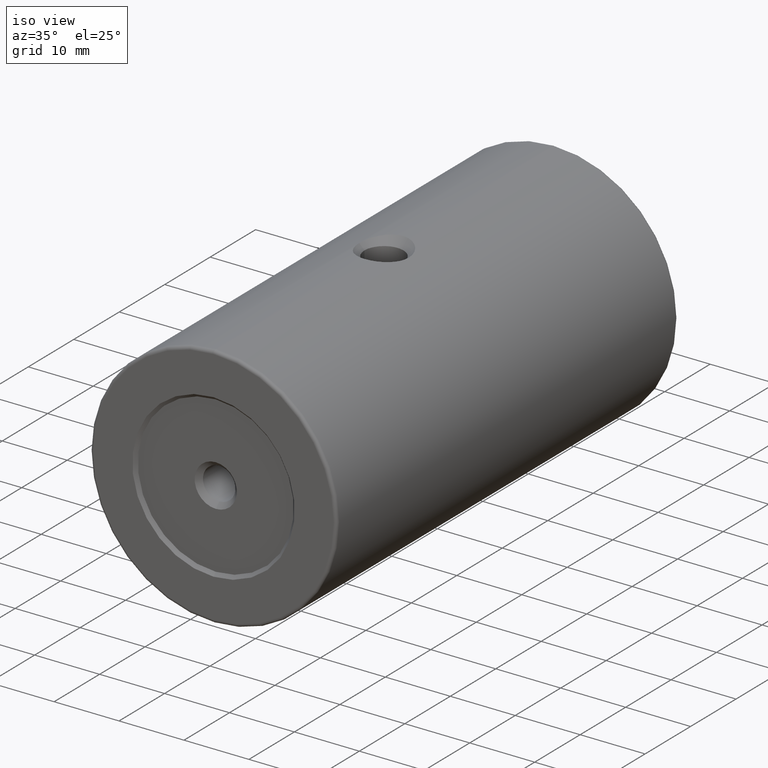
[diagram: clean part render]
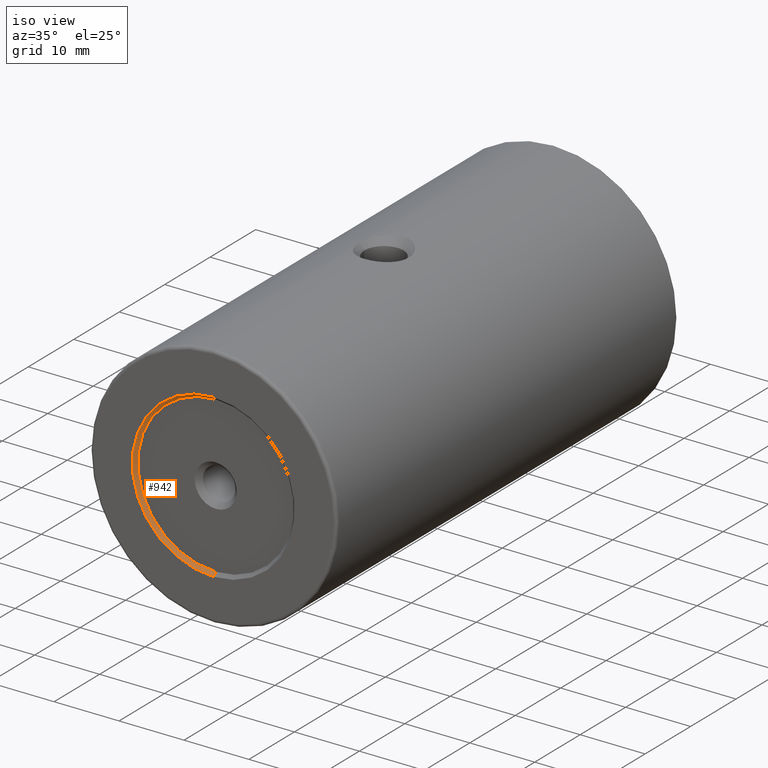
[diagram: same view with one face highlighted and labeled with its STEP entity id]
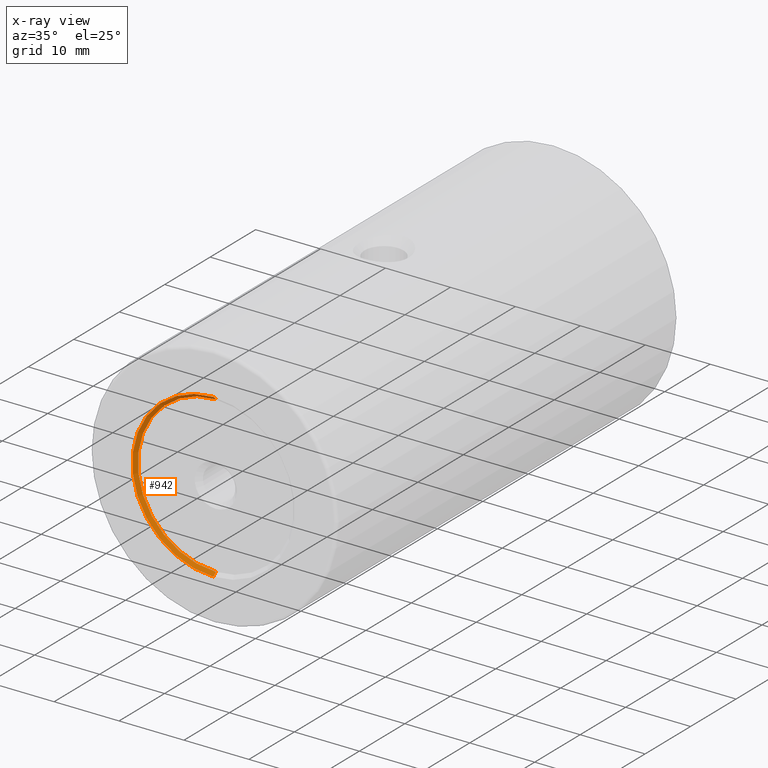
[diagram: x-ray of the same camera — body ghosted, the highlighted face saturated]
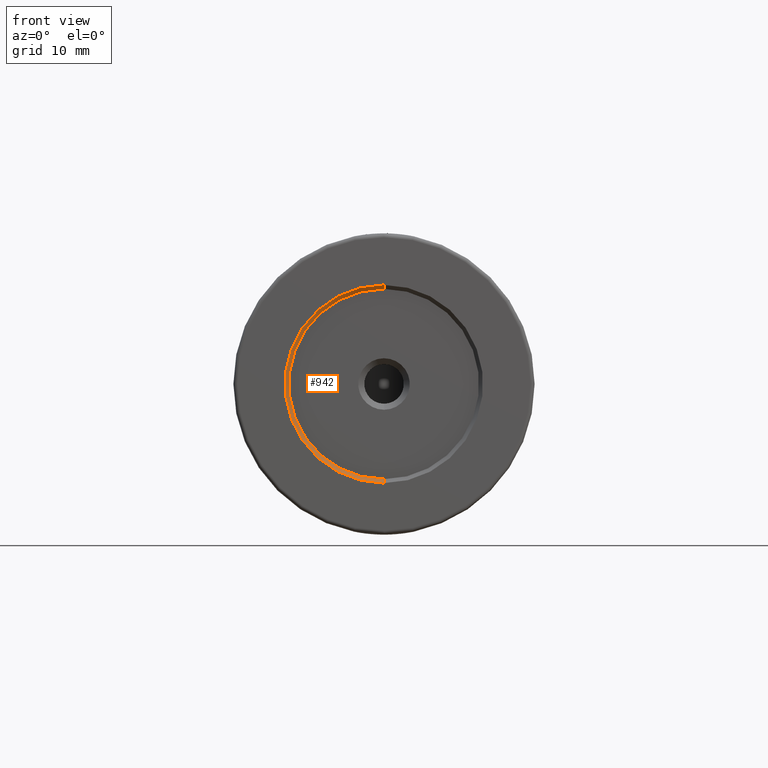
[diagram: same view with one face highlighted and labeled with its STEP entity id]
A machine part, iso view. The second image highlights one B-rep face of the part: STEP entity #942.
The next image is the same camera in x-ray: the body ghosted, the highlighted face saturated — about 0% of this face is hidden behind the body in this view.
A second angle (front view) of the same face is appended — the face is thin or edge-on in the first view.
In plain terms, the highlighted conical surface has half-angle 45 deg.
Its self-contained STEP definition (entity closure, byte-faithful):
#74 = CARTESIAN_POINT ( 'NONE',  ( -85.22679983354142053, -41.76133999167427646, 412.5000000000000568 ) ) ;
#88 = CARTESIAN_POINT ( 'NONE',  ( -85.22679983354142053, -41.26133999167427646, 388.0000000000000000 ) ) ;
#98 = DIRECTION ( 'NONE',  ( -0.0000000000000000000, -1.000000000000000000, -0.0000000000000000000 ) ) ;
#100 = EDGE_LOOP ( 'NONE', ( #394, #592, #498, #458 ) ) ;
#134 = EDGE_CURVE ( 'NONE', #981, #694, #994, .T. ) ;
#167 = CIRCLE ( 'NONE', #662, 12.50000000000001066 ) ;
#178 = VERTEX_POINT ( 'NONE', #605 ) ;
#202 = CONICAL_SURFACE ( 'NONE', #550, 12.50000000000001066, 0.7853981633974500554 ) ;
#261 = VECTOR ( 'NONE', #283, 1000.000000000000000 ) ;
#272 = DIRECTION ( 'NONE',  ( 0.0000000000000000000, 0.0000000000000000000, 1.000000000000000000 ) ) ;
#283 = DIRECTION ( 'NONE',  ( 0.0000000000000000000, -0.7071067811865463515, 0.7071067811865487940 ) ) ;
#299 = CARTESIAN_POINT ( 'NONE',  ( -85.22679983354142053, -41.76133999167427646, 412.5000000000000568 ) ) ;
#305 = CARTESIAN_POINT ( 'NONE',  ( -85.22679983354142053, -41.76133999167427646, 387.5000000000000000 ) ) ;
#368 = DIRECTION ( 'NONE',  ( -8.659560562354948882E-17, -0.7071067811865463515, -0.7071067811865487940 ) ) ;
#388 = AXIS2_PLACEMENT_3D ( 'NONE', #546, #541, #959 ) ;
#394 = ORIENTED_EDGE ( 'NONE', *, *, #134, .F. ) ;
#408 = FACE_OUTER_BOUND ( 'NONE', #100, .T. ) ;
#458 = ORIENTED_EDGE ( 'NONE', *, *, #753, .F. ) ;
#498 = ORIENTED_EDGE ( 'NONE', *, *, #601, .T. ) ;
#522 = LINE ( 'NONE', #299, #261 ) ;
#541 = DIRECTION ( 'NONE',  ( -0.0000000000000000000, 1.000000000000000000, -0.0000000000000000000 ) ) ;
#545 = DIRECTION ( 'NONE',  ( 0.0000000000000000000, 0.0000000000000000000, 1.000000000000000000 ) ) ;
#546 = CARTESIAN_POINT ( 'NONE',  ( -85.22679983354142053, -41.26133999167427646, 400.0000000000000000 ) ) ;
#550 = AXIS2_PLACEMENT_3D ( 'NONE', #963, #98, #272 ) ;
#592 = ORIENTED_EDGE ( 'NONE', *, *, #690, .T. ) ;
#601 = EDGE_CURVE ( 'NONE', #178, #785, #522, .T. ) ;
#605 = CARTESIAN_POINT ( 'NONE',  ( -85.22679983354142053, -41.26133999167427646, 412.0000000000000568 ) ) ;
#636 = CARTESIAN_POINT ( 'NONE',  ( -85.22679983354142053, -41.76133999167427646, 400.0000000000000000 ) ) ;
#662 = AXIS2_PLACEMENT_3D ( 'NONE', #636, #947, #545 ) ;
#690 = EDGE_CURVE ( 'NONE', #981, #178, #742, .T. ) ;
#694 = VERTEX_POINT ( 'NONE', #767 ) ;
#742 = CIRCLE ( 'NONE', #388, 12.00000000000001066 ) ;
#753 = EDGE_CURVE ( 'NONE', #694, #785, #167, .T. ) ;
#767 = CARTESIAN_POINT ( 'NONE',  ( -85.22679983354142053, -41.76133999167427646, 387.5000000000000000 ) ) ;
#785 = VERTEX_POINT ( 'NONE', #74 ) ;
#919 = VECTOR ( 'NONE', #368, 1000.000000000000000 ) ;
#942 = ADVANCED_FACE ( 'NONE', ( #408 ), #202, .F. ) ;
#947 = DIRECTION ( 'NONE',  ( -0.0000000000000000000, 1.000000000000000000, -0.0000000000000000000 ) ) ;
#959 = DIRECTION ( 'NONE',  ( 0.0000000000000000000, 0.0000000000000000000, -1.000000000000000000 ) ) ;
#963 = CARTESIAN_POINT ( 'NONE',  ( -85.22679983354142053, -41.76133999167427646, 400.0000000000000000 ) ) ;
#981 = VERTEX_POINT ( 'NONE', #88 ) ;
#994 = LINE ( 'NONE', #305, #919 ) ;